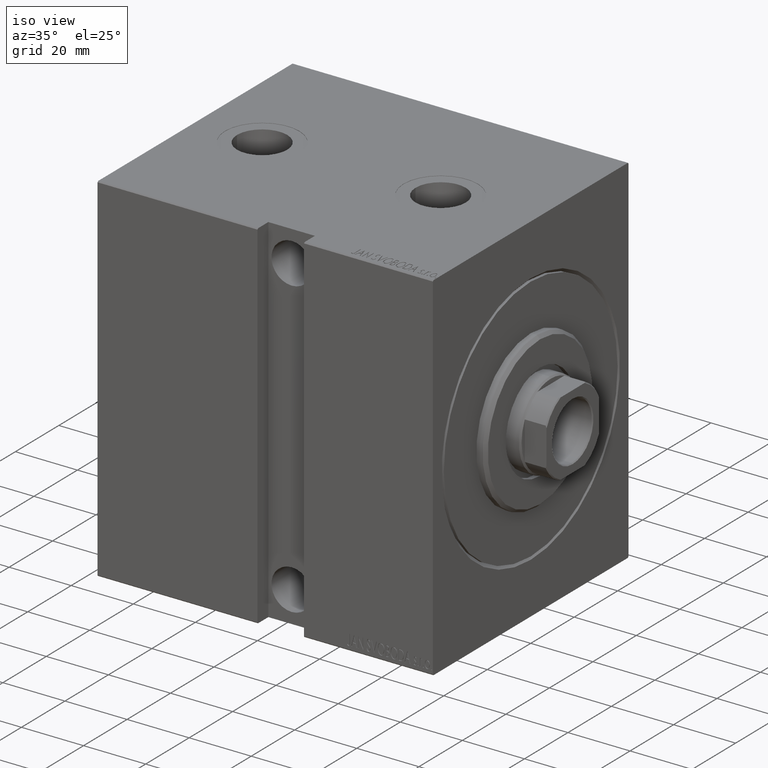
[diagram: clean part render]
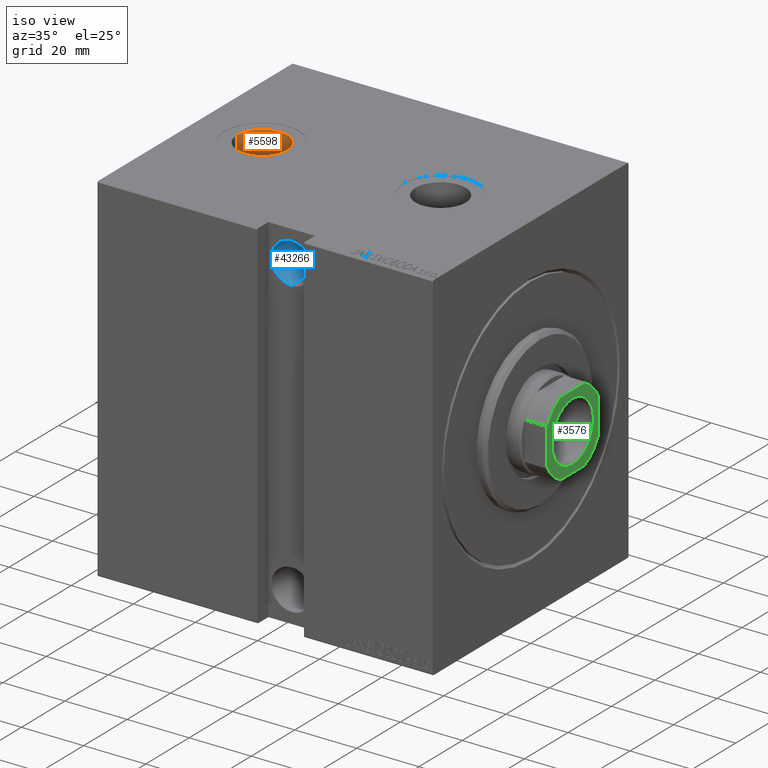
[diagram: same view with three faces highlighted in distinct colors, each labeled with its STEP entity id]
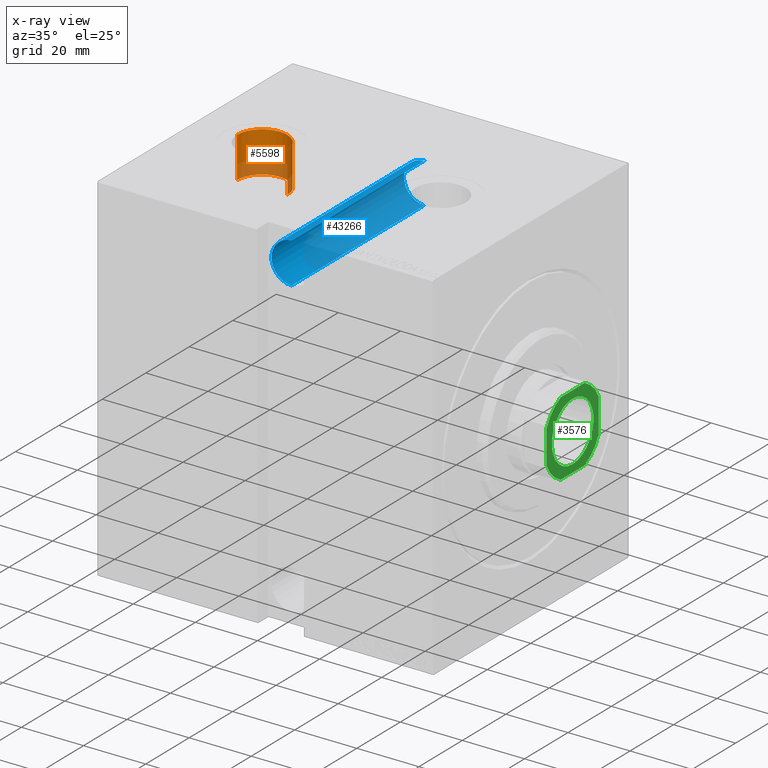
[diagram: x-ray of the same camera — body ghosted, the three highlighted faces saturated]
A machine part, iso view with three faces highlighted in distinct colors.
The next image is the same camera in x-ray (body ghosted, the three faces saturated) — at least one of them is partly hidden behind the body in this view.
Their STEP definitions:

[orange] entity #5598 — the highlighted cylindrical surface (edge-blend (fillet) strip) has radius 8.085 mm, axis along (0, 0, 1).
#76 = AXIS2_PLACEMENT_3D ( 'NONE', #9784, #10221, #191 ) ;
#191 = DIRECTION ( 'NONE',  ( 1.000000000000000000, 0.000000000000000000, 0.000000000000000000 ) ) ;
#3712 = CARTESIAN_POINT ( 'NONE',  ( 78.41499999999999204, -1.230941971204488879E-14, 57.39999999999999858 ) ) ;
#4666 = CYLINDRICAL_SURFACE ( 'NONE', #20586, 8.084999999999995524 ) ;
#5331 = CARTESIAN_POINT ( 'NONE',  ( 86.50000000000000000, -1.329954664915552316E-14, 44.24000000000000199 ) ) ;
#5598 = ADVANCED_FACE ( 'NONE', ( #39629 ), #4666, .F. ) ;
#6502 = VECTOR ( 'NONE', #8490, 1000.000000000000000 ) ;
#8490 = DIRECTION ( 'NONE',  ( -0.000000000000000000, -0.000000000000000000, 1.000000000000000000 ) ) ;
#9784 = CARTESIAN_POINT ( 'NONE',  ( 86.50000000000000000, -1.329954664915552316E-14, 44.24000000000000199 ) ) ;
#10221 = DIRECTION ( 'NONE',  ( 0.000000000000000000, 0.000000000000000000, 1.000000000000000000 ) ) ;
#10407 = CARTESIAN_POINT ( 'NONE',  ( 94.58499999999999375, -1.329954664915552316E-14, 57.39999999999999858 ) ) ;
#11409 = EDGE_LOOP ( 'NONE', ( #39213, #24989, #25608, #16450 ) ) ;
#12225 = DIRECTION ( 'NONE',  ( -0.000000000000000000, -0.000000000000000000, 1.000000000000000000 ) ) ;
#12374 = DIRECTION ( 'NONE',  ( 1.000000000000000000, 0.000000000000000000, 0.000000000000000000 ) ) ;
#12433 = CARTESIAN_POINT ( 'NONE',  ( 78.41499999999999204, -1.230941971204488879E-14, 44.24000000000000199 ) ) ;
#14836 = EDGE_CURVE ( 'NONE', #30153, #24273, #19306, .T. ) ;
#15175 = LINE ( 'NONE', #42570, #6502 ) ;
#16385 = CARTESIAN_POINT ( 'NONE',  ( 94.58499999999999375, -1.329954664915552316E-14, 44.24000000000000199 ) ) ;
#16450 = ORIENTED_EDGE ( 'NONE', *, *, #33336, .F. ) ;
#16675 = CARTESIAN_POINT ( 'NONE',  ( 78.41499999999999204, -1.230941971204488879E-14, 44.24000000000000199 ) ) ;
#17756 = VERTEX_POINT ( 'NONE', #10407 ) ;
#19283 = CARTESIAN_POINT ( 'NONE',  ( 86.50000000000000000, -1.329954664915552316E-14, 57.39999999999999858 ) ) ;
#19306 = CIRCLE ( 'NONE', #76, 8.084999999999995524 ) ;
#19362 = LINE ( 'NONE', #16675, #25001 ) ;
#20586 = AXIS2_PLACEMENT_3D ( 'NONE', #5331, #42088, #38957 ) ;
#21471 = CIRCLE ( 'NONE', #34221, 8.084999999999995524 ) ;
#24273 = VERTEX_POINT ( 'NONE', #16385 ) ;
#24989 = ORIENTED_EDGE ( 'NONE', *, *, #33751, .T. ) ;
#25001 = VECTOR ( 'NONE', #12225, 1000.000000000000000 ) ;
#25608 = ORIENTED_EDGE ( 'NONE', *, *, #39030, .T. ) ;
#27466 = VERTEX_POINT ( 'NONE', #3712 ) ;
#30153 = VERTEX_POINT ( 'NONE', #12433 ) ;
#33336 = EDGE_CURVE ( 'NONE', #24273, #17756, #15175, .T. ) ;
#33751 = EDGE_CURVE ( 'NONE', #30153, #27466, #19362, .T. ) ;
#34221 = AXIS2_PLACEMENT_3D ( 'NONE', #19283, #42449, #12374 ) ;
#38957 = DIRECTION ( 'NONE',  ( 1.000000000000000000, 0.000000000000000000, 0.000000000000000000 ) ) ;
#39030 = EDGE_CURVE ( 'NONE', #27466, #17756, #21471, .T. ) ;
#39213 = ORIENTED_EDGE ( 'NONE', *, *, #14836, .F. ) ;
#39629 = FACE_OUTER_BOUND ( 'NONE', #11409, .T. ) ;
#42088 = DIRECTION ( 'NONE',  ( -0.000000000000000000, -0.000000000000000000, 1.000000000000000000 ) ) ;
#42449 = DIRECTION ( 'NONE',  ( 0.000000000000000000, 0.000000000000000000, 1.000000000000000000 ) ) ;
#42570 = CARTESIAN_POINT ( 'NONE',  ( 94.58499999999999375, -1.329954664915552316E-14, 44.24000000000000199 ) ) ;

[blue] entity #43266 — the highlighted cylindrical surface (edge-blend (fillet) strip) has radius 6.5 mm, axis along (0, -1, 0).
#1372 = CARTESIAN_POINT ( 'NONE',  ( 49.00000000000002132, -20.99999999999998934, 41.00000000000000000 ) ) ;
#1843 = CARTESIAN_POINT ( 'NONE',  ( 49.00000000000002132, 40.00000000000001421, 47.50000000000000000 ) ) ;
#1888 = CARTESIAN_POINT ( 'NONE',  ( 49.00000000000002132, 40.00000000000001421, 54.00000000000000000 ) ) ;
#1978 = EDGE_CURVE ( 'NONE', #24561, #14476, #36146, .T. ) ;
#2004 = AXIS2_PLACEMENT_3D ( 'NONE', #1843, #38387, #38618 ) ;
#2930 = VECTOR ( 'NONE', #10147, 1000.000000000000000 ) ;
#4308 = AXIS2_PLACEMENT_3D ( 'NONE', #43583, #16398, #5949 ) ;
#4410 = LINE ( 'NONE', #14655, #24980 ) ;
#5949 = DIRECTION ( 'NONE',  ( 0.000000000000000000, 0.000000000000000000, -1.000000000000000000 ) ) ;
#8122 = ORIENTED_EDGE ( 'NONE', *, *, #14890, .T. ) ;
#8402 = ORIENTED_EDGE ( 'NONE', *, *, #8646, .F. ) ;
#8646 = EDGE_CURVE ( 'NONE', #24672, #13012, #26359, .T. ) ;
#8665 = EDGE_CURVE ( 'NONE', #13012, #24561, #23086, .T. ) ;
#10147 = DIRECTION ( 'NONE',  ( -0.000000000000000000, 1.000000000000000000, -0.000000000000000000 ) ) ;
#12525 = ORIENTED_EDGE ( 'NONE', *, *, #1978, .F. ) ;
#13012 = VERTEX_POINT ( 'NONE', #1372 ) ;
#13059 = CARTESIAN_POINT ( 'NONE',  ( 49.00000000000002132, -45.00000000000006395, 47.50000000000000000 ) ) ;
#13705 = CYLINDRICAL_SURFACE ( 'NONE', #28660, 6.499999999999999112 ) ;
#13914 = DIRECTION ( 'NONE',  ( -0.000000000000000000, 1.000000000000000000, -0.000000000000000000 ) ) ;
#14476 = VERTEX_POINT ( 'NONE', #1888 ) ;
#14655 = CARTESIAN_POINT ( 'NONE',  ( 49.00000000000002132, -45.00000000000006395, 54.00000000000000000 ) ) ;
#14890 = EDGE_CURVE ( 'NONE', #24672, #14476, #4410, .T. ) ;
#16398 = DIRECTION ( 'NONE',  ( -0.000000000000000000, 1.000000000000000000, -1.963837897332234442E-16 ) ) ;
#19825 = CARTESIAN_POINT ( 'NONE',  ( 49.00000000000002132, -20.99999999999998934, 54.00000000000000000 ) ) ;
#23086 = LINE ( 'NONE', #29761, #2930 ) ;
#24561 = VERTEX_POINT ( 'NONE', #27000 ) ;
#24672 = VERTEX_POINT ( 'NONE', #19825 ) ;
#24980 = VECTOR ( 'NONE', #41831, 1000.000000000000000 ) ;
#26359 = CIRCLE ( 'NONE', #4308, 6.499999999999999112 ) ;
#27000 = CARTESIAN_POINT ( 'NONE',  ( 49.00000000000002132, 40.00000000000001421, 41.00000000000000000 ) ) ;
#28660 = AXIS2_PLACEMENT_3D ( 'NONE', #13059, #13914, #40673 ) ;
#29761 = CARTESIAN_POINT ( 'NONE',  ( 49.00000000000002132, -45.00000000000006395, 41.00000000000000000 ) ) ;
#35567 = ORIENTED_EDGE ( 'NONE', *, *, #8665, .F. ) ;
#36146 = CIRCLE ( 'NONE', #2004, 6.499999999999999112 ) ;
#37763 = EDGE_LOOP ( 'NONE', ( #35567, #8402, #8122, #12525 ) ) ;
#38387 = DIRECTION ( 'NONE',  ( 0.000000000000000000, -1.000000000000000000, 0.000000000000000000 ) ) ;
#38618 = DIRECTION ( 'NONE',  ( 0.000000000000000000, 0.000000000000000000, -1.000000000000000000 ) ) ;
#40673 = DIRECTION ( 'NONE',  ( 0.000000000000000000, 0.000000000000000000, 1.000000000000000000 ) ) ;
#41831 = DIRECTION ( 'NONE',  ( -0.000000000000000000, 1.000000000000000000, -0.000000000000000000 ) ) ;
#43266 = ADVANCED_FACE ( 'NONE', ( #43585 ), #13705, .F. ) ;
#43583 = CARTESIAN_POINT ( 'NONE',  ( 49.00000000000002132, -20.99999999999998934, 47.50000000000000000 ) ) ;
#43585 = FACE_OUTER_BOUND ( 'NONE', #37763, .T. ) ;

[green] entity #3576 — the highlighted planar face has unit normal (1, 0, -0).
#470 = AXIS2_PLACEMENT_3D ( 'NONE', #42511, #11986, #29141 ) ;
#561 = AXIS2_PLACEMENT_3D ( 'NONE', #22336, #16091, #9631 ) ;
#638 = FACE_BOUND ( 'NONE', #35776, .T. ) ;
#1127 = EDGE_CURVE ( 'NONE', #15686, #23197, #7679, .T. ) ;
#1611 = ORIENTED_EDGE ( 'NONE', *, *, #22996, .T. ) ;
#2170 = VERTEX_POINT ( 'NONE', #3588 ) ;
#2665 = DIRECTION ( 'NONE',  ( -2.168404344971008868E-16, 1.000000000000000000, -0.000000000000000000 ) ) ;
#3126 = DIRECTION ( 'NONE',  ( -0.000000000000000000, 0.000000000000000000, 1.000000000000000000 ) ) ;
#3141 = DIRECTION ( 'NONE',  ( 1.000000000000000000, 0.000000000000000000, 0.000000000000000000 ) ) ;
#3532 = CARTESIAN_POINT ( 'NONE',  ( -9.550000000000002487, 1.169537693185722558E-15, 104.0000000000000142 ) ) ;
#3576 = ADVANCED_FACE ( 'NONE', ( #638, #13994 ), #30286, .T. ) ;
#3588 = CARTESIAN_POINT ( 'NONE',  ( 5.499090833947004597, -12.00000000000000355, 104.0000000000000142 ) ) ;
#3700 = CIRCLE ( 'NONE', #6547, 9.550000000000002487 ) ;
#4270 = CARTESIAN_POINT ( 'NONE',  ( -11.99999999999999822, -12.00000000000000355, 104.0000000000000142 ) ) ;
#4569 = CIRCLE ( 'NONE', #9575, 13.20000000000000107 ) ;
#5467 = DIRECTION ( 'NONE',  ( 2.168404344971008868E-16, -1.000000000000000000, 0.000000000000000000 ) ) ;
#5856 = VERTEX_POINT ( 'NONE', #22804 ) ;
#6547 = AXIS2_PLACEMENT_3D ( 'NONE', #23395, #20072, #3141 ) ;
#6682 = LINE ( 'NONE', #16716, #28706 ) ;
#7290 = EDGE_CURVE ( 'NONE', #30463, #22766, #37691, .T. ) ;
#7320 = CARTESIAN_POINT ( 'NONE',  ( 0.000000000000000000, 0.000000000000000000, 104.0000000000000142 ) ) ;
#7679 = CIRCLE ( 'NONE', #561, 13.20000000000002238 ) ;
#9383 = VECTOR ( 'NONE', #5467, 1000.000000000000000 ) ;
#9423 = EDGE_CURVE ( 'NONE', #37334, #37487, #33377, .T. ) ;
#9575 = AXIS2_PLACEMENT_3D ( 'NONE', #15999, #16212, #23329 ) ;
#9631 = DIRECTION ( 'NONE',  ( 1.000000000000000000, 0.000000000000000000, 0.000000000000000000 ) ) ;
#10386 = CARTESIAN_POINT ( 'NONE',  ( -12.00000000000000178, 5.499090833947057000, 104.0000000000000142 ) ) ;
#10475 = DIRECTION ( 'NONE',  ( 1.000000000000000000, 0.000000000000000000, 0.000000000000000000 ) ) ;
#10632 = AXIS2_PLACEMENT_3D ( 'NONE', #27408, #40998, #10475 ) ;
#11986 = DIRECTION ( 'NONE',  ( 0.000000000000000000, -0.000000000000000000, -1.000000000000000000 ) ) ;
#11999 = CARTESIAN_POINT ( 'NONE',  ( 5.499090833947013479, 11.99999999999999645, 104.0000000000000142 ) ) ;
#12884 = EDGE_CURVE ( 'NONE', #22766, #2170, #34771, .T. ) ;
#13994 = FACE_OUTER_BOUND ( 'NONE', #33973, .T. ) ;
#15151 = ORIENTED_EDGE ( 'NONE', *, *, #12884, .T. ) ;
#15289 = EDGE_CURVE ( 'NONE', #23197, #30463, #42661, .T. ) ;
#15686 = VERTEX_POINT ( 'NONE', #23424 ) ;
#15999 = CARTESIAN_POINT ( 'NONE',  ( 0.000000000000000000, 0.000000000000000000, 104.0000000000000142 ) ) ;
#16091 = DIRECTION ( 'NONE',  ( -0.000000000000000000, 0.000000000000000000, 1.000000000000000000 ) ) ;
#16212 = DIRECTION ( 'NONE',  ( -0.000000000000000000, 0.000000000000000000, 1.000000000000000000 ) ) ;
#16516 = EDGE_CURVE ( 'NONE', #29004, #5856, #3700, .T. ) ;
#16716 = CARTESIAN_POINT ( 'NONE',  ( -12.00000000000000355, 11.99999999999999645, 104.0000000000000142 ) ) ;
#17562 = DIRECTION ( 'NONE',  ( 1.000000000000000000, 0.000000000000000000, 0.000000000000000000 ) ) ;
#18087 = CIRCLE ( 'NONE', #32311, 13.19999999999999929 ) ;
#18723 = CARTESIAN_POINT ( 'NONE',  ( 11.99999999999999645, 5.499090833947010815, 104.0000000000000142 ) ) ;
#19725 = CARTESIAN_POINT ( 'NONE',  ( -12.00000000000000000, -5.499090833947057888, 104.0000000000000142 ) ) ;
#20072 = DIRECTION ( 'NONE',  ( 0.000000000000000000, -0.000000000000000000, -1.000000000000000000 ) ) ;
#20681 = VECTOR ( 'NONE', #27443, 1000.000000000000000 ) ;
#20721 = EDGE_CURVE ( 'NONE', #36067, #15686, #6682, .T. ) ;
#21845 = CIRCLE ( 'NONE', #470, 9.550000000000002487 ) ;
#22336 = CARTESIAN_POINT ( 'NONE',  ( 0.000000000000000000, 0.000000000000000000, 104.0000000000000142 ) ) ;
#22726 = CARTESIAN_POINT ( 'NONE',  ( -5.499090833947052559, -12.00000000000000355, 104.0000000000000142 ) ) ;
#22756 = ORIENTED_EDGE ( 'NONE', *, *, #9423, .T. ) ;
#22766 = VERTEX_POINT ( 'NONE', #22726 ) ;
#22804 = CARTESIAN_POINT ( 'NONE',  ( 9.550000000000002487, 0.000000000000000000, 104.0000000000000142 ) ) ;
#22851 = EDGE_CURVE ( 'NONE', #37487, #36067, #18087, .T. ) ;
#22996 = EDGE_CURVE ( 'NONE', #2170, #37334, #4569, .T. ) ;
#23197 = VERTEX_POINT ( 'NONE', #10386 ) ;
#23329 = DIRECTION ( 'NONE',  ( 1.000000000000000000, 0.000000000000000000, 0.000000000000000000 ) ) ;
#23395 = CARTESIAN_POINT ( 'NONE',  ( 0.000000000000000000, 0.000000000000000000, 104.0000000000000142 ) ) ;
#23424 = CARTESIAN_POINT ( 'NONE',  ( -5.499090833947067658, 11.99999999999999645, 104.0000000000000142 ) ) ;
#24511 = CARTESIAN_POINT ( 'NONE',  ( 12.00000000000000000, -5.499090833947013479, 104.0000000000000142 ) ) ;
#25657 = ORIENTED_EDGE ( 'NONE', *, *, #1127, .T. ) ;
#27359 = EDGE_CURVE ( 'NONE', #5856, #29004, #21845, .T. ) ;
#27408 = CARTESIAN_POINT ( 'NONE',  ( 0.000000000000000000, 0.000000000000000000, 104.0000000000000142 ) ) ;
#27443 = DIRECTION ( 'NONE',  ( 1.000000000000000000, 0.000000000000000000, 0.000000000000000000 ) ) ;
#28518 = VECTOR ( 'NONE', #2665, 1000.000000000000000 ) ;
#28706 = VECTOR ( 'NONE', #30288, 1000.000000000000000 ) ;
#29004 = VERTEX_POINT ( 'NONE', #3532 ) ;
#29141 = DIRECTION ( 'NONE',  ( 1.000000000000000000, 0.000000000000000000, 0.000000000000000000 ) ) ;
#30286 = PLANE ( 'NONE',  #43343 ) ;
#30288 = DIRECTION ( 'NONE',  ( -1.000000000000000000, -0.000000000000000000, -0.000000000000000000 ) ) ;
#30463 = VERTEX_POINT ( 'NONE', #19725 ) ;
#31404 = ORIENTED_EDGE ( 'NONE', *, *, #20721, .T. ) ;
#32311 = AXIS2_PLACEMENT_3D ( 'NONE', #7320, #34479, #17562 ) ;
#32947 = CARTESIAN_POINT ( 'NONE',  ( 11.99999999999999645, 11.99999999999999645, 104.0000000000000142 ) ) ;
#33377 = LINE ( 'NONE', #32947, #28518 ) ;
#33860 = ORIENTED_EDGE ( 'NONE', *, *, #16516, .T. ) ;
#33973 = EDGE_LOOP ( 'NONE', ( #22756, #39123, #31404, #25657, #44083, #44088, #15151, #1611 ) ) ;
#34260 = DIRECTION ( 'NONE',  ( 1.000000000000000000, 0.000000000000000000, 0.000000000000000000 ) ) ;
#34479 = DIRECTION ( 'NONE',  ( -0.000000000000000000, 0.000000000000000000, 1.000000000000000000 ) ) ;
#34771 = LINE ( 'NONE', #4270, #20681 ) ;
#35518 = CARTESIAN_POINT ( 'NONE',  ( -12.00000000000000355, 11.99999999999999645, 104.0000000000000142 ) ) ;
#35776 = EDGE_LOOP ( 'NONE', ( #40323, #33860 ) ) ;
#36067 = VERTEX_POINT ( 'NONE', #11999 ) ;
#37334 = VERTEX_POINT ( 'NONE', #24511 ) ;
#37410 = CARTESIAN_POINT ( 'NONE',  ( 0.000000000000000000, 0.000000000000000000, 104.0000000000000142 ) ) ;
#37487 = VERTEX_POINT ( 'NONE', #18723 ) ;
#37691 = CIRCLE ( 'NONE', #10632, 13.20000000000002238 ) ;
#39123 = ORIENTED_EDGE ( 'NONE', *, *, #22851, .T. ) ;
#40323 = ORIENTED_EDGE ( 'NONE', *, *, #27359, .T. ) ;
#40998 = DIRECTION ( 'NONE',  ( -0.000000000000000000, 0.000000000000000000, 1.000000000000000000 ) ) ;
#42511 = CARTESIAN_POINT ( 'NONE',  ( 0.000000000000000000, 0.000000000000000000, 104.0000000000000142 ) ) ;
#42661 = LINE ( 'NONE', #35518, #9383 ) ;
#43343 = AXIS2_PLACEMENT_3D ( 'NONE', #37410, #3126, #34260 ) ;
#44083 = ORIENTED_EDGE ( 'NONE', *, *, #15289, .T. ) ;
#44088 = ORIENTED_EDGE ( 'NONE', *, *, #7290, .T. ) ;